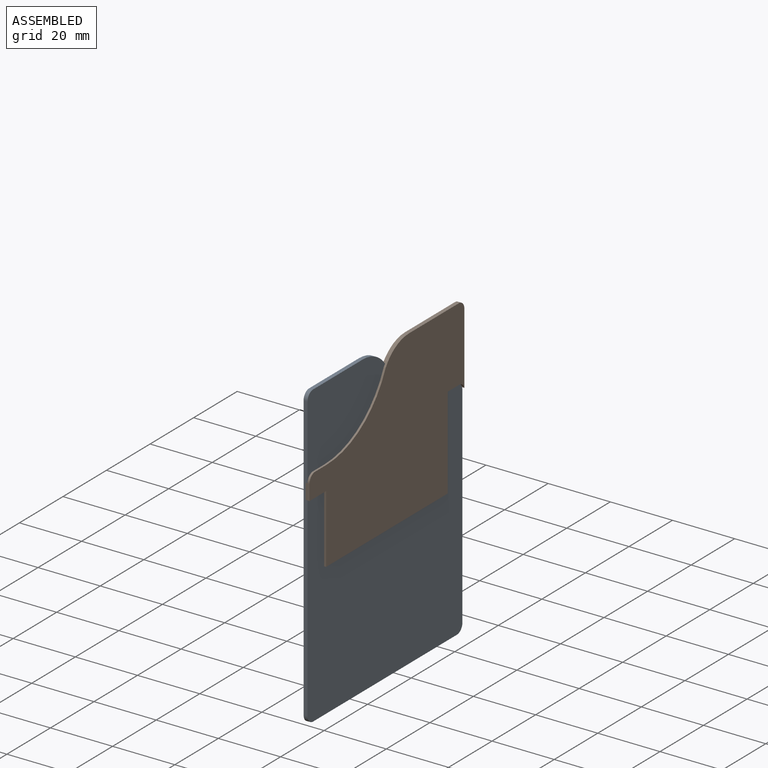
[diagram: assembled view]
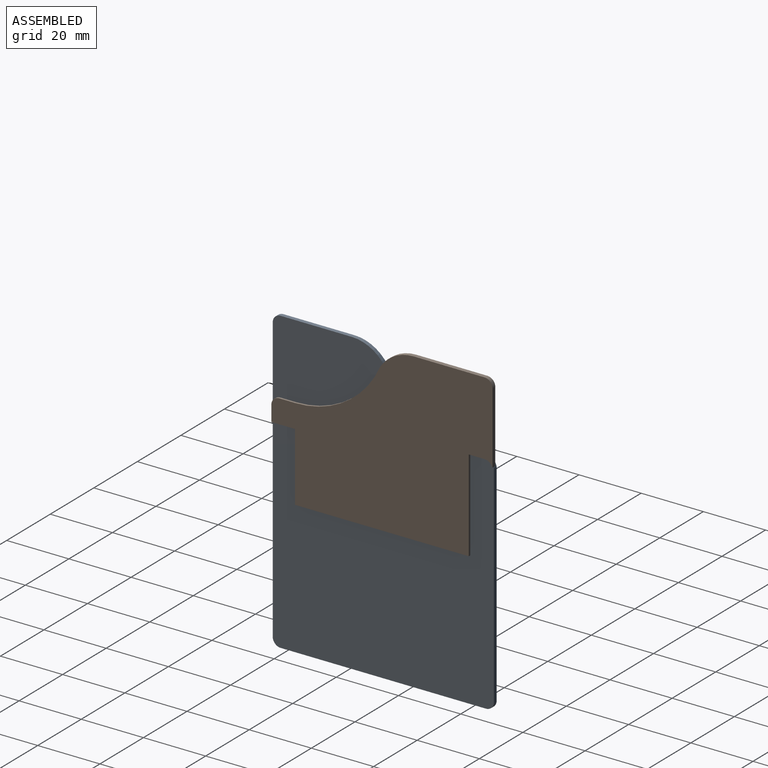
[diagram: assembled view, second angle]
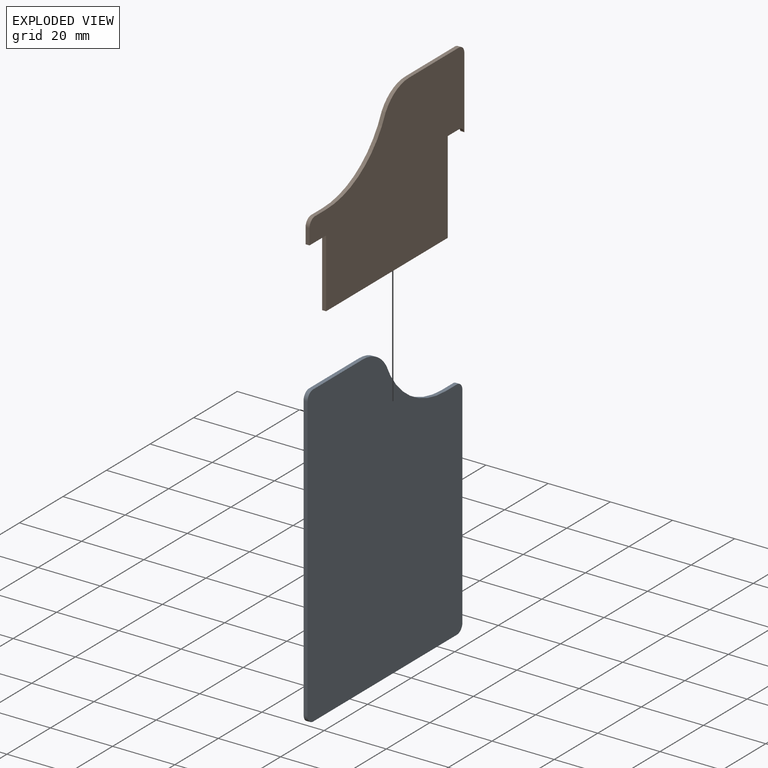
[diagram: exploded view]
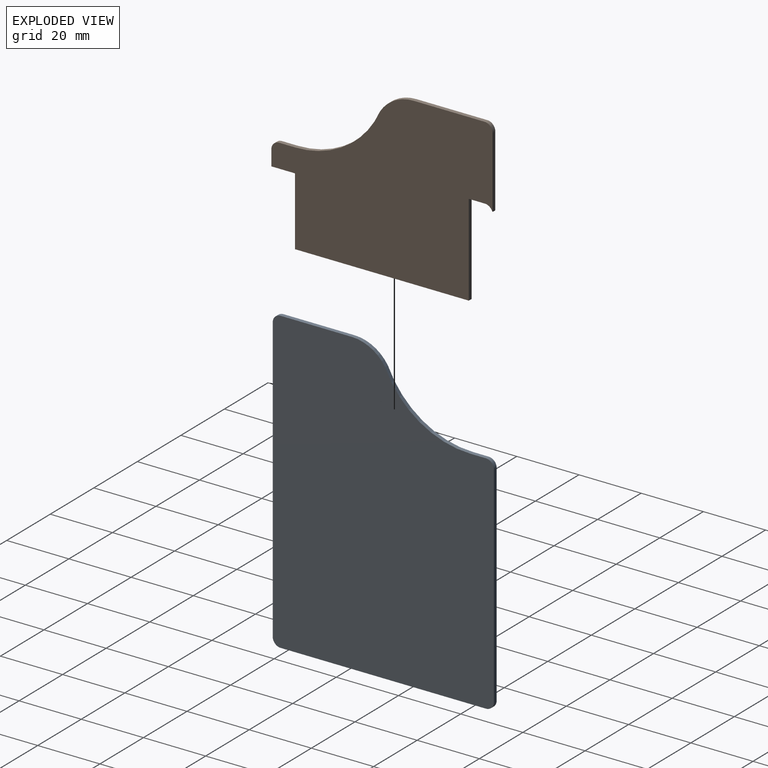
[diagram: exploded view, second angle]
ASSEMBLY  parts=2 mates=6
PART A: 13 faces, bbox 1.3x71.1x96.5 mm
  f0: plane 66.04x1.27mm, normal (0,0,-1), area 83.9mm2, adj f1,f10,f11,f12
  f1: cylinder r=2.54mm len=2.54mm, axis (-1,0,0), area 5.1mm2, adj f0,f2,f11,f12
  f2: plane 67.68x1.27mm, normal (0,1,0), area 86mm2, adj f1,f3,f11,f12
  f3: cylinder r=2.54mm len=2.54mm, axis (-1,0,0), area 5.1mm2, adj f2,f4,f11,f12
  f4: plane 5.08x1.27mm, normal (0,0,1), area 6.5mm2, adj f3,f5,f11,f12
  f5: cylinder r=29.9mm len=27.35mm, axis (-1,0,0), area 43.9mm2, adj f4,f6,f11,f12
  f6: cylinder r=12.7mm len=10.75mm, axis (-1,0,0), area 16.3mm2, adj f5,f7,f11,f12
  f7: plane 22.86x1.27mm, normal (0,0,1), area 29mm2, adj f6,f8,f11,f12
  f8: cylinder r=2.54mm len=2.54mm, axis (-1,0,0), area 5.1mm2, adj f7,f9,f11,f12
  f9: plane 91.44x1.27mm, normal (0,-1,0), area 116.1mm2, adj f8,f10,f11,f12
  f10: cylinder r=2.54mm len=2.54mm, axis (-1,0,0), area 5.1mm2, adj f0,f9,f11,f12
  f11: plane 96.52x71.12mm, normal (1,0,0), area 6145.7mm2, adj f0,f1,f2,f3,f4,f5,f6,f7
  f12: plane 96.52x71.12mm, normal (-1,0,0), area 6145.7mm2, adj f0,f1,f2,f3,f4,f5,f6,f7
PART B: 16 faces, bbox 71.1x1.3x53.3 mm
  f0: cylinder r=12.7mm len=10.75mm, axis (0,1,0), area 16.3mm2, adj f1,f13,f14,f15
  f1: cylinder r=29.9mm len=27.35mm, axis (0,1,0), area 43.9mm2, adj f0,f2,f14,f15
  f2: plane 5.08x1.27mm, normal (0,0,1), area 6.5mm2, adj f1,f3,f14,f15
  f3: cylinder r=2.54mm len=2.54mm, axis (0,1,0), area 5.1mm2, adj f2,f4,f14,f15
  f4: plane 5x1.27mm, normal (-1,0,0), area 6.3mm2, adj f3,f5,f14,f15
  f5: plane 7.62x1.27mm, normal (0,0,-1), area 9.7mm2, adj f4,f6,f14,f15
  f6: plane 22.04x1.27mm, normal (-1,0,0), area 28mm2, adj f5,f7,f14,f15
  f7: plane 55.88x1.27mm, normal (0,0,-1), area 71mm2, adj f6,f8,f14,f15
  f8: plane 29.58x1.27mm, normal (1,0,0), area 37.6mm2, adj f7,f9,f14,f15
  f9: plane 5.08x1.27mm, normal (0,0,-1), area 6.5mm2, adj f8,f10,f14,f15
  f10: cylinder r=2.7mm len=2.54mm, axis (0,1,0), area 4.2mm2, adj f9,f11,f14,f15
  f11: plane 23x1.27mm, normal (1,0,0), area 29.2mm2, adj f10,f12,f14,f15
  f12: cylinder r=2.54mm len=2.54mm, axis (0,1,0), area 5.1mm2, adj f11,f13,f14,f15
  f13: plane 22.86x1.27mm, normal (0,0,1), area 29mm2, adj f0,f12,f14,f15
  f14: plane 71.12x53.34mm, normal (0,-1,0), area 2685.4mm2, adj f0,f1,f2,f3,f4,f5,f6,f7
  f15: plane 71.12x53.34mm, normal (0,1,0), area 2685.4mm2, adj f0,f1,f2,f3,f4,f5,f6,f7
PLACE A rot(axis=(0.7,0.01,0.71),0deg) t=(-164.63,-146.36,25.71)mm
PLACE B rot(axis=(0,0,1),90deg) t=(-164,64.21,10.21)mm
MATE planar A.f7 <-> B.f13  axis (0,0,1) through (-164,-168.81,67.99)mm
MATE parallel A.f9 <-> B.f6  axis (0,-1,0) through (-164,-182.78,19.73)mm
MATE planar A.f9 <-> B.f4  axis (0,-1,0) through (-164,-182.78,19.73)mm
MATE parallel B.f13 <-> A.f7  axis (0,0,1) through (-163.36,-125.63,67.99)mm
MATE parallel B.f15 <-> A.f12  axis (-1,0,0) through (-164,-142.66,38.93)mm
MATE parallel A.f2 <-> B.f11  axis (0,1,0) through (-164,-111.66,7.85)mm
